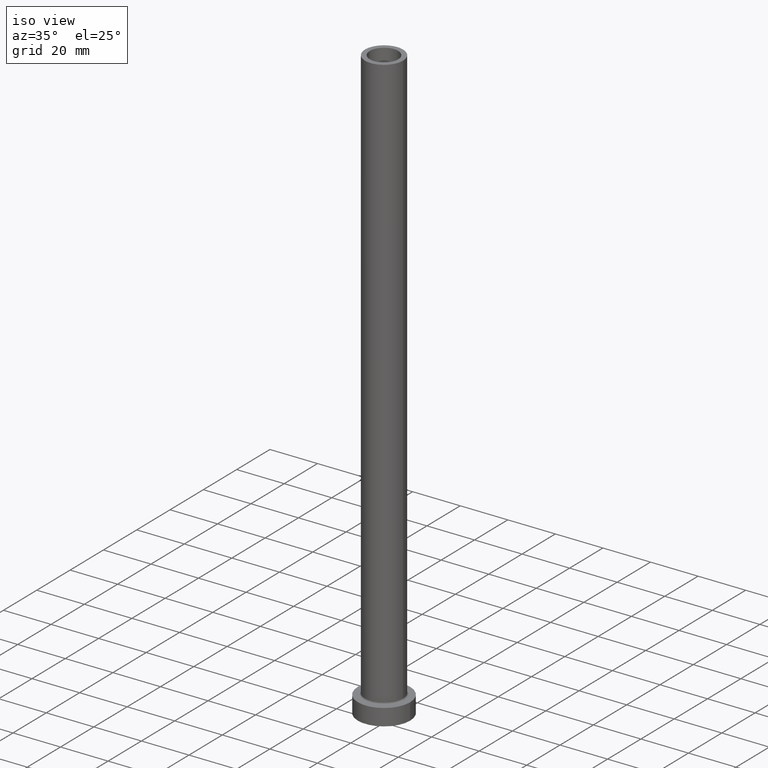
[diagram: clean part render]
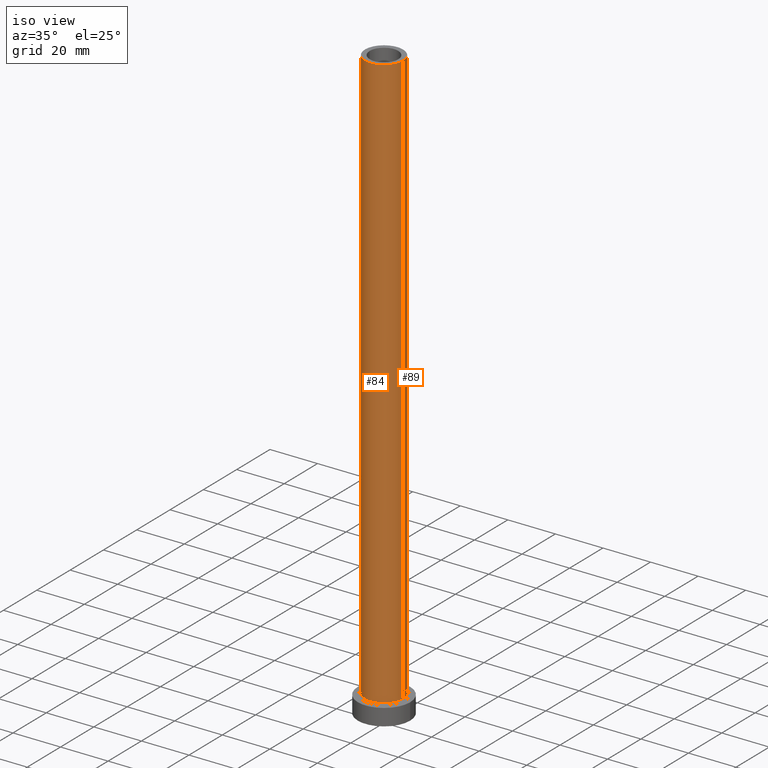
[diagram: same view with one multi-face feature highlighted, each face labeled with its STEP entity id]
A machine part, iso view. The highlighted faces form ONE feature: a constant-radius fillet chain: 2 tangent blend faces with common blend radius 8 mm. The faces share edges in the B-rep.
Their STEP definitions:
[1] entity #89 (Cylinder):
#1 = VERTEX_POINT ( 'NONE', #60 ) ;
#24 = EDGE_LOOP ( 'NONE', ( #383, #395, #177, #236 ) ) ;
#38 = CARTESIAN_POINT ( 'NONE',  ( -8.000000000000000000, 0.000000000000000000, 7.700000000000012612 ) ) ;
#41 = DIRECTION ( 'NONE',  ( 1.000000000000000000, 0.000000000000000000, 0.000000000000000000 ) ) ;
#48 = CARTESIAN_POINT ( 'NONE',  ( 8.000000000000000000, 9.797174393178825657E-16, 7.700000000000012612 ) ) ;
#60 = CARTESIAN_POINT ( 'NONE',  ( 8.000000000000000000, 9.797174393178825657E-16, 250.0000000000000000 ) ) ;
#61 = DIRECTION ( 'NONE',  ( 0.000000000000000000, 0.000000000000000000, 1.000000000000000000 ) ) ;
#71 = CARTESIAN_POINT ( 'NONE',  ( 8.000000000000000000, 9.797174393178825657E-16, 250.0000000000000000 ) ) ;
#77 = CARTESIAN_POINT ( 'NONE',  ( -8.000000000000000000, 0.000000000000000000, 250.0000000000000000 ) ) ;
#79 = CARTESIAN_POINT ( 'NONE',  ( 0.000000000000000000, 0.000000000000000000, 250.0000000000000000 ) ) ;
#85 = CIRCLE ( 'NONE', #198, 8.000000000000000000 ) ;
#89 = ADVANCED_FACE ( 'NONE', ( #288 ), #166, .T. ) ;
#111 = VERTEX_POINT ( 'NONE', #38 ) ;
#136 = CARTESIAN_POINT ( 'NONE',  ( 0.000000000000000000, 0.000000000000000000, 250.0000000000000000 ) ) ;
#148 = EDGE_CURVE ( 'NONE', #1, #260, #370, .T. ) ;
#160 = EDGE_CURVE ( 'NONE', #260, #111, #391, .T. ) ;
#166 = CYLINDRICAL_SURFACE ( 'NONE', #413, 8.000000000000000000 ) ;
#167 = LINE ( 'NONE', #71, #431 ) ;
#169 = AXIS2_PLACEMENT_3D ( 'NONE', #79, #319, #41 ) ;
#177 = ORIENTED_EDGE ( 'NONE', *, *, #325, .T. ) ;
#191 = VECTOR ( 'NONE', #217, 1000.000000000000000 ) ;
#198 = AXIS2_PLACEMENT_3D ( 'NONE', #408, #61, #268 ) ;
#217 = DIRECTION ( 'NONE',  ( -0.000000000000000000, -0.000000000000000000, -1.000000000000000000 ) ) ;
#236 = ORIENTED_EDGE ( 'NONE', *, *, #160, .F. ) ;
#250 = CARTESIAN_POINT ( 'NONE',  ( -8.000000000000000000, 0.000000000000000000, 250.0000000000000000 ) ) ;
#260 = VERTEX_POINT ( 'NONE', #250 ) ;
#268 = DIRECTION ( 'NONE',  ( 1.000000000000000000, 0.000000000000000000, 0.000000000000000000 ) ) ;
#288 = FACE_OUTER_BOUND ( 'NONE', #24, .T. ) ;
#308 = DIRECTION ( 'NONE',  ( -0.000000000000000000, -0.000000000000000000, -1.000000000000000000 ) ) ;
#319 = DIRECTION ( 'NONE',  ( 0.000000000000000000, 0.000000000000000000, 1.000000000000000000 ) ) ;
#325 = EDGE_CURVE ( 'NONE', #450, #111, #85, .T. ) ;
#348 = DIRECTION ( 'NONE',  ( -0.000000000000000000, -0.000000000000000000, -1.000000000000000000 ) ) ;
#370 = CIRCLE ( 'NONE', #169, 8.000000000000000000 ) ;
#373 = EDGE_CURVE ( 'NONE', #1, #450, #167, .T. ) ;
#383 = ORIENTED_EDGE ( 'NONE', *, *, #148, .F. ) ;
#391 = LINE ( 'NONE', #77, #191 ) ;
#395 = ORIENTED_EDGE ( 'NONE', *, *, #373, .T. ) ;
#408 = CARTESIAN_POINT ( 'NONE',  ( 0.000000000000000000, 0.000000000000000000, 7.700000000000012612 ) ) ;
#413 = AXIS2_PLACEMENT_3D ( 'NONE', #136, #308, #460 ) ;
#431 = VECTOR ( 'NONE', #348, 1000.000000000000000 ) ;
#450 = VERTEX_POINT ( 'NONE', #48 ) ;
#460 = DIRECTION ( 'NONE',  ( -1.000000000000000000, 0.000000000000000000, 0.000000000000000000 ) ) ;
[2] entity #84 (Cylinder):
#1 = VERTEX_POINT ( 'NONE', #60 ) ;
#3 = CYLINDRICAL_SURFACE ( 'NONE', #113, 8.000000000000000000 ) ;
#38 = CARTESIAN_POINT ( 'NONE',  ( -8.000000000000000000, 0.000000000000000000, 7.700000000000012612 ) ) ;
#39 = CARTESIAN_POINT ( 'NONE',  ( 0.000000000000000000, 0.000000000000000000, 7.700000000000012612 ) ) ;
#48 = CARTESIAN_POINT ( 'NONE',  ( 8.000000000000000000, 9.797174393178825657E-16, 7.700000000000012612 ) ) ;
#60 = CARTESIAN_POINT ( 'NONE',  ( 8.000000000000000000, 9.797174393178825657E-16, 250.0000000000000000 ) ) ;
#67 = CIRCLE ( 'NONE', #146, 8.000000000000000000 ) ;
#71 = CARTESIAN_POINT ( 'NONE',  ( 8.000000000000000000, 9.797174393178825657E-16, 250.0000000000000000 ) ) ;
#74 = EDGE_LOOP ( 'NONE', ( #222, #251, #188, #115 ) ) ;
#75 = DIRECTION ( 'NONE',  ( 0.000000000000000000, 0.000000000000000000, 1.000000000000000000 ) ) ;
#77 = CARTESIAN_POINT ( 'NONE',  ( -8.000000000000000000, 0.000000000000000000, 250.0000000000000000 ) ) ;
#84 = ADVANCED_FACE ( 'NONE', ( #356 ), #3, .T. ) ;
#111 = VERTEX_POINT ( 'NONE', #38 ) ;
#113 = AXIS2_PLACEMENT_3D ( 'NONE', #276, #211, #174 ) ;
#115 = ORIENTED_EDGE ( 'NONE', *, *, #195, .T. ) ;
#146 = AXIS2_PLACEMENT_3D ( 'NONE', #369, #257, #357 ) ;
#160 = EDGE_CURVE ( 'NONE', #260, #111, #391, .T. ) ;
#167 = LINE ( 'NONE', #71, #431 ) ;
#174 = DIRECTION ( 'NONE',  ( -1.000000000000000000, 0.000000000000000000, 0.000000000000000000 ) ) ;
#179 = DIRECTION ( 'NONE',  ( 1.000000000000000000, 0.000000000000000000, 0.000000000000000000 ) ) ;
#188 = ORIENTED_EDGE ( 'NONE', *, *, #160, .T. ) ;
#191 = VECTOR ( 'NONE', #217, 1000.000000000000000 ) ;
#195 = EDGE_CURVE ( 'NONE', #111, #450, #381, .T. ) ;
#211 = DIRECTION ( 'NONE',  ( -0.000000000000000000, -0.000000000000000000, -1.000000000000000000 ) ) ;
#217 = DIRECTION ( 'NONE',  ( -0.000000000000000000, -0.000000000000000000, -1.000000000000000000 ) ) ;
#222 = ORIENTED_EDGE ( 'NONE', *, *, #373, .F. ) ;
#250 = CARTESIAN_POINT ( 'NONE',  ( -8.000000000000000000, 0.000000000000000000, 250.0000000000000000 ) ) ;
#251 = ORIENTED_EDGE ( 'NONE', *, *, #256, .F. ) ;
#256 = EDGE_CURVE ( 'NONE', #260, #1, #67, .T. ) ;
#257 = DIRECTION ( 'NONE',  ( 0.000000000000000000, 0.000000000000000000, 1.000000000000000000 ) ) ;
#260 = VERTEX_POINT ( 'NONE', #250 ) ;
#276 = CARTESIAN_POINT ( 'NONE',  ( 0.000000000000000000, 0.000000000000000000, 250.0000000000000000 ) ) ;
#313 = AXIS2_PLACEMENT_3D ( 'NONE', #39, #75, #179 ) ;
#348 = DIRECTION ( 'NONE',  ( -0.000000000000000000, -0.000000000000000000, -1.000000000000000000 ) ) ;
#356 = FACE_OUTER_BOUND ( 'NONE', #74, .T. ) ;
#357 = DIRECTION ( 'NONE',  ( 1.000000000000000000, 0.000000000000000000, 0.000000000000000000 ) ) ;
#369 = CARTESIAN_POINT ( 'NONE',  ( 0.000000000000000000, 0.000000000000000000, 250.0000000000000000 ) ) ;
#373 = EDGE_CURVE ( 'NONE', #1, #450, #167, .T. ) ;
#381 = CIRCLE ( 'NONE', #313, 8.000000000000000000 ) ;
#391 = LINE ( 'NONE', #77, #191 ) ;
#431 = VECTOR ( 'NONE', #348, 1000.000000000000000 ) ;
#450 = VERTEX_POINT ( 'NONE', #48 ) ;